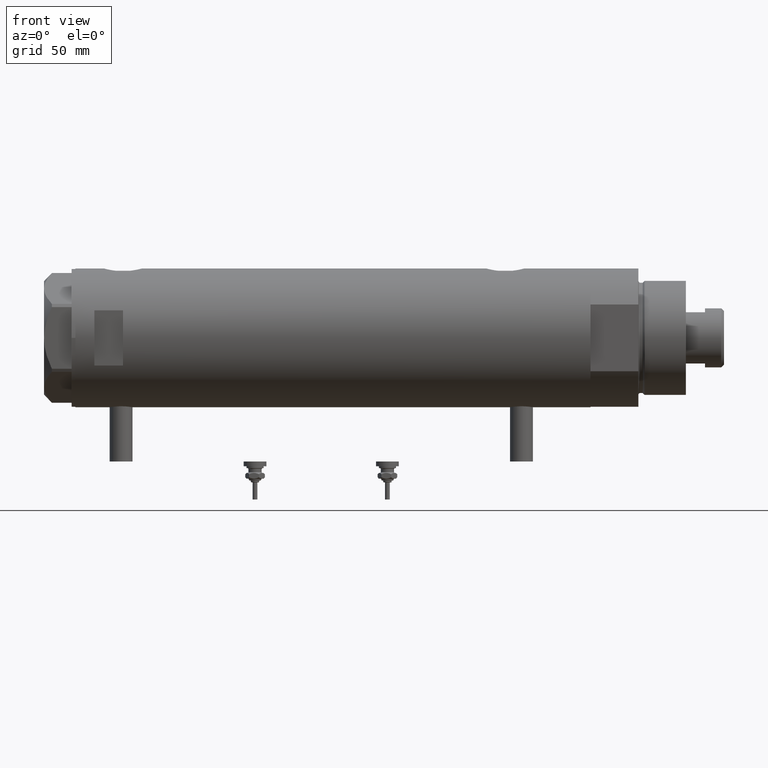
[diagram: clean part render]
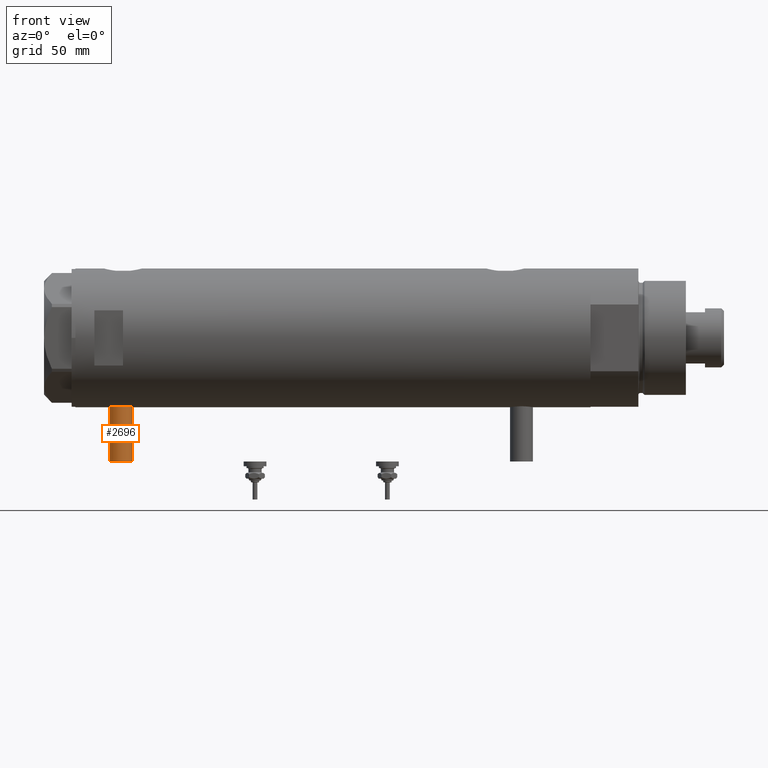
[diagram: same view with one face highlighted and labeled with its STEP entity id]
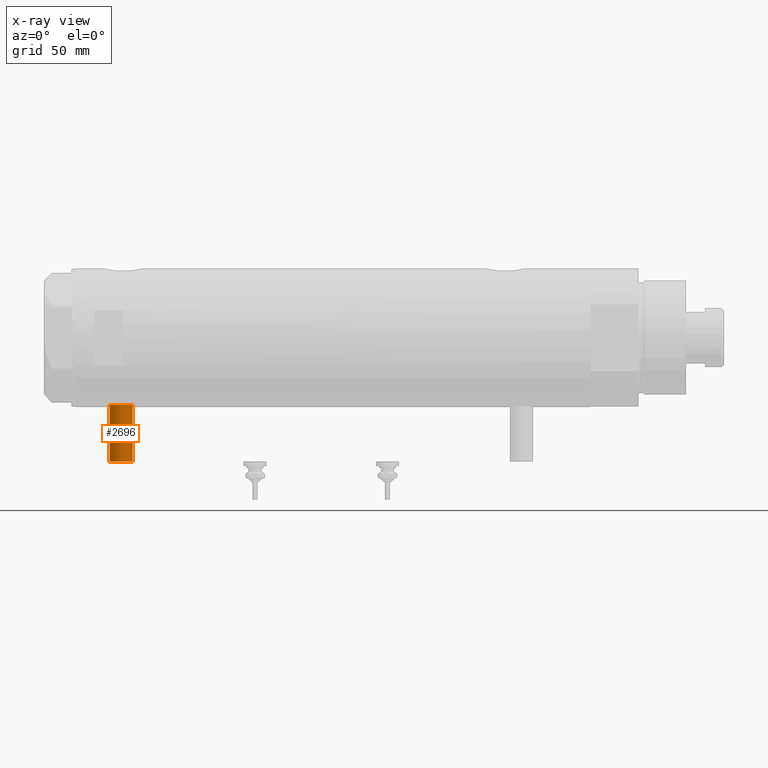
[diagram: x-ray of the same camera — body ghosted, the highlighted face saturated]
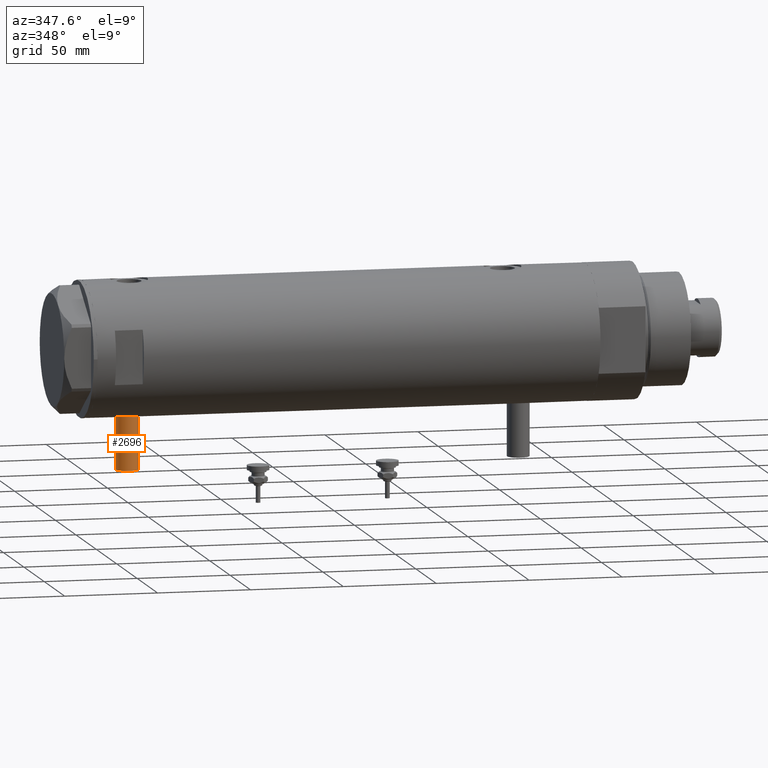
[diagram: same view with one face highlighted and labeled with its STEP entity id]
A machine part, front view. The second image highlights one B-rep face of the part: STEP entity #2696.
The next image is the same camera in x-ray: the body ghosted, the highlighted face saturated — about 0% of this face is hidden behind the body in this view.
A second angle (auxiliary view) of the same face is appended — the face is thin or edge-on in the first view.
In plain terms, the highlighted cylindrical surface (edge-blend (fillet) strip) has radius 6 mm, axis along (0, 0, 1).
Its self-contained STEP definition (entity closure, byte-faithful):
#10 = DIRECTION ( 'NONE',  ( 0.000000000000000000, 0.000000000000000000, 1.000000000000000000 ) ) ;
#42 = VECTOR ( 'NONE', #4472, 1000.000000000000000 ) ;
#43 = FACE_OUTER_BOUND ( 'NONE', #4221, .T. ) ;
#76 = CARTESIAN_POINT ( 'NONE',  ( -35.29999999999999716, 0.000000000000000000, 105.4000000000000057 ) ) ;
#377 = CIRCLE ( 'NONE', #4187, 5.999999999999991118 ) ;
#447 = EDGE_CURVE ( 'NONE', #3537, #4943, #919, .T. ) ;
#486 = CARTESIAN_POINT ( 'NONE',  ( -65.00000000000000000, 0.000000000000000000, 105.4000000000000057 ) ) ;
#547 = CARTESIAN_POINT ( 'NONE',  ( -65.00000000000000000, 7.347880794884101001E-16, 117.3999999999999915 ) ) ;
#701 = ORIENTED_EDGE ( 'NONE', *, *, #447, .F. ) ;
#919 = CIRCLE ( 'NONE', #1014, 5.999999999999991118 ) ;
#1014 = AXIS2_PLACEMENT_3D ( 'NONE', #4102, #4023, #10 ) ;
#1396 = DIRECTION ( 'NONE',  ( 0.000000000000000000, 0.000000000000000000, -1.000000000000000000 ) ) ;
#1459 = VECTOR ( 'NONE', #4156, 1000.000000000000000 ) ;
#1477 = EDGE_CURVE ( 'NONE', #2361, #4875, #377, .T. ) ;
#1551 = ORIENTED_EDGE ( 'NONE', *, *, #3964, .F. ) ;
#2332 = LINE ( 'NONE', #486, #1459 ) ;
#2361 = VERTEX_POINT ( 'NONE', #76 ) ;
#2402 = CARTESIAN_POINT ( 'NONE',  ( -35.29999999999999716, 7.347880794884101001E-16, 117.3999999999999915 ) ) ;
#2695 = CARTESIAN_POINT ( 'NONE',  ( -65.00000000000000000, 0.000000000000000000, 105.4000000000000057 ) ) ;
#2696 = ADVANCED_FACE ( 'NONE', ( #43 ), #3198, .T. ) ;
#2932 = ORIENTED_EDGE ( 'NONE', *, *, #4618, .T. ) ;
#3198 = CYLINDRICAL_SURFACE ( 'NONE', #5682, 5.999999999999991118 ) ;
#3215 = LINE ( 'NONE', #5072, #42 ) ;
#3537 = VERTEX_POINT ( 'NONE', #2695 ) ;
#3964 = EDGE_CURVE ( 'NONE', #4943, #4875, #3215, .T. ) ;
#4023 = DIRECTION ( 'NONE',  ( -1.000000000000000000, 0.000000000000000000, 0.000000000000000000 ) ) ;
#4102 = CARTESIAN_POINT ( 'NONE',  ( -65.00000000000000000, 0.000000000000000000, 111.4000000000000057 ) ) ;
#4156 = DIRECTION ( 'NONE',  ( 1.000000000000000000, -0.000000000000000000, -0.000000000000000000 ) ) ;
#4187 = AXIS2_PLACEMENT_3D ( 'NONE', #5705, #5647, #5137 ) ;
#4221 = EDGE_LOOP ( 'NONE', ( #1551, #701, #2932, #4839 ) ) ;
#4472 = DIRECTION ( 'NONE',  ( 1.000000000000000000, -0.000000000000000000, -0.000000000000000000 ) ) ;
#4618 = EDGE_CURVE ( 'NONE', #3537, #2361, #2332, .T. ) ;
#4839 = ORIENTED_EDGE ( 'NONE', *, *, #1477, .T. ) ;
#4875 = VERTEX_POINT ( 'NONE', #2402 ) ;
#4943 = VERTEX_POINT ( 'NONE', #547 ) ;
#5072 = CARTESIAN_POINT ( 'NONE',  ( -65.00000000000000000, 7.347880794884104945E-16, 117.3999999999999915 ) ) ;
#5137 = DIRECTION ( 'NONE',  ( 0.000000000000000000, 0.000000000000000000, 1.000000000000000000 ) ) ;
#5224 = CARTESIAN_POINT ( 'NONE',  ( -65.00000000000000000, 0.000000000000000000, 111.4000000000000057 ) ) ;
#5502 = DIRECTION ( 'NONE',  ( 1.000000000000000000, -0.000000000000000000, -0.000000000000000000 ) ) ;
#5647 = DIRECTION ( 'NONE',  ( -1.000000000000000000, 0.000000000000000000, 0.000000000000000000 ) ) ;
#5682 = AXIS2_PLACEMENT_3D ( 'NONE', #5224, #5502, #1396 ) ;
#5705 = CARTESIAN_POINT ( 'NONE',  ( -35.29999999999999716, 0.000000000000000000, 111.4000000000000057 ) ) ;